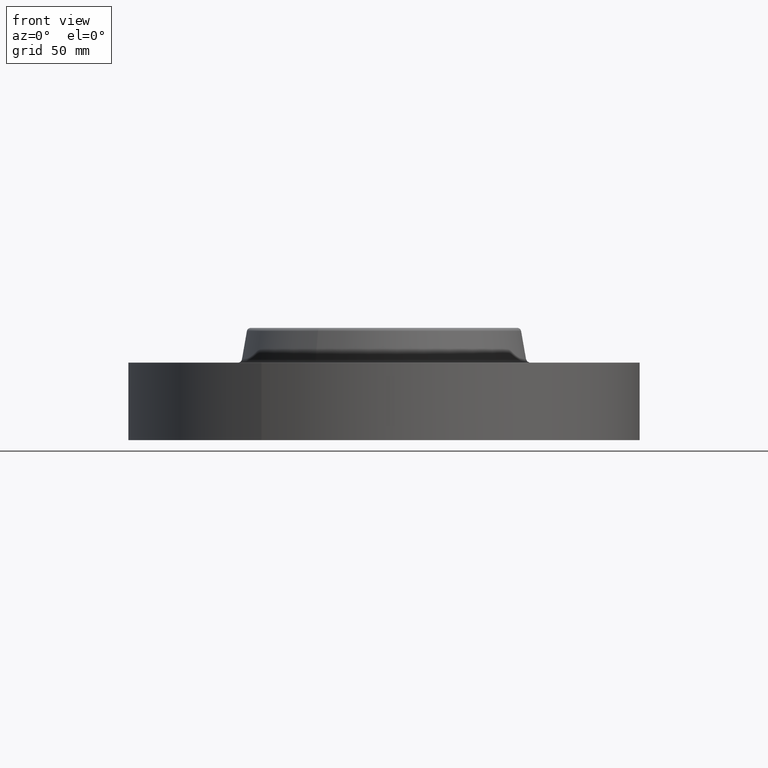
[diagram: clean part render]
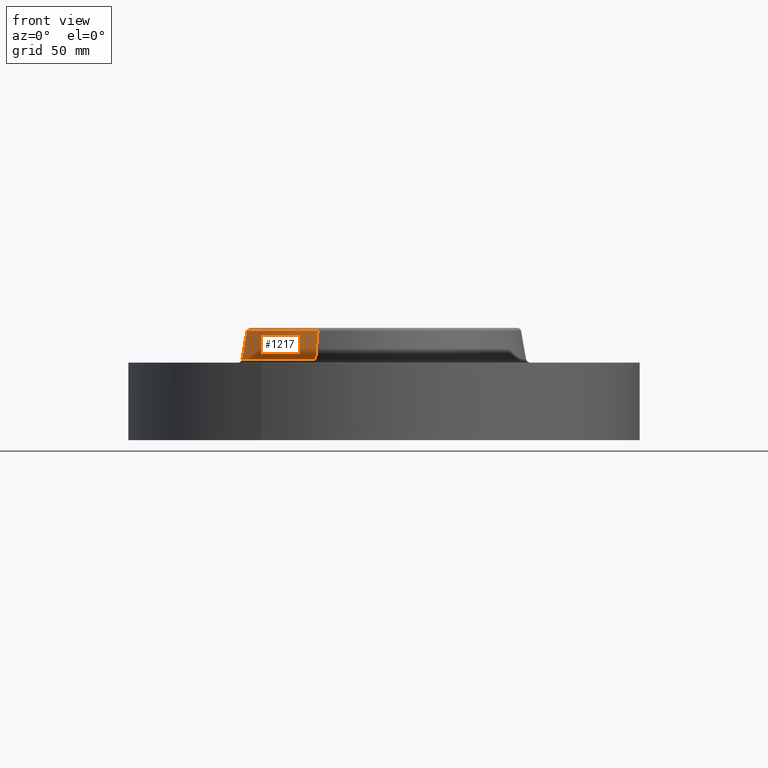
[diagram: same view with one face highlighted and labeled with its STEP entity id]
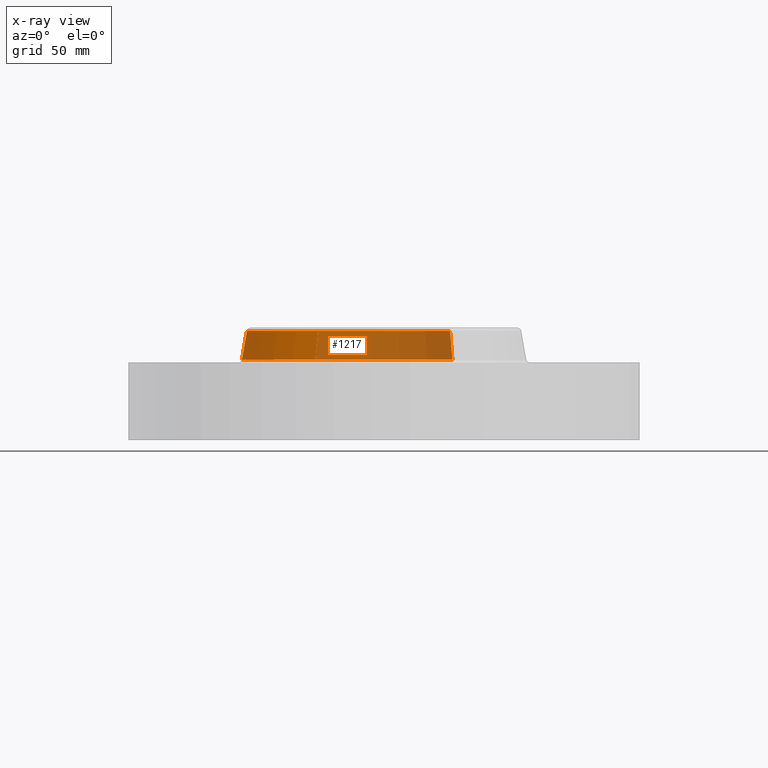
[diagram: x-ray of the same camera — body ghosted, the highlighted face saturated]
A machine part, front view. The second image highlights one B-rep face of the part: STEP entity #1217.
The next image is the same camera in x-ray: the body ghosted, the highlighted face saturated — about 65% of this face is hidden behind the body in this view.
In plain terms, the highlighted conical surface has half-angle 10 deg.
Its self-contained STEP definition (entity closure, byte-faithful):
#492=AXIS2_PLACEMENT_3D('Circle Axis2P3D',#490,#491,$) ;
#1204=AXIS2_PLACEMENT_3D('Cone Axis2P3D',#1201,#1202,#1203) ;
#1208=AXIS2_PLACEMENT_3D('Circle Axis2P3D',#1206,#1207,$) ;
#456=CARTESIAN_POINT('Vertex',(1.06432439756,1.94823274165,1.76041889067)) ;
#458=CARTESIAN_POINT('Vertex',(-1.06432439756,-1.94823274165,1.76041889067)) ;
#490=CARTESIAN_POINT('Axis2P3D Location',(0.,0.,1.76041889067)) ;
#1172=CARTESIAN_POINT('Vertex',(1.10328162249,2.01954346356,1.29958110935)) ;
#1174=CARTESIAN_POINT('Vertex',(-1.10328162249,-2.01954346356,1.29958110935)) ;
#1177=CARTESIAN_POINT('Line Origine',(1.08380301002,1.9838881026,1.53000000001)) ;
#1182=CARTESIAN_POINT('Line Origine',(-1.08380301002,-1.9838881026,1.53000000001)) ;
#1201=CARTESIAN_POINT('Axis2P3D Location',(0.,0.,1.76041889067)) ;
#1206=CARTESIAN_POINT('Axis2P3D Location',(0.,0.,1.29958110935)) ;
#491=DIRECTION('Axis2P3D Direction',(-0.,0.,-0.0393700787402)) ;
#1178=DIRECTION('Vector Direction',(0.00327761303565,0.00599963041827,-0.03877195878)) ;
#1183=DIRECTION('Vector Direction',(-0.00327761303565,-0.00599963041827,-0.03877195878)) ;
#1202=DIRECTION('Axis2P3D Direction',(0.,0.,-0.0393700787402)) ;
#1203=DIRECTION('Axis2P3D XDirection',(-0.0188750212049,-0.0345504945626,0.)) ;
#1207=DIRECTION('Axis2P3D Direction',(-0.,0.,-0.0393700787402)) ;
#1179=VECTOR('Line Direction',#1178,0.0393700787402) ;
#1184=VECTOR('Line Direction',#1183,0.0393700787402) ;
#1212=ORIENTED_EDGE('',*,*,#1210,.F.) ;
#1213=ORIENTED_EDGE('',*,*,#1186,.T.) ;
#1214=ORIENTED_EDGE('',*,*,#494,.T.) ;
#1215=ORIENTED_EDGE('',*,*,#1181,.F.) ;
#1217=ADVANCED_FACE('PartBody',(#1216),#1205,.T.) ;
#493=CIRCLE('generated circle',#492,2.21999937812) ;
#1209=CIRCLE('generated circle',#1208,2.3012575127) ;
#1205=CONICAL_SURFACE('Cone',#1204,2.21999937812,0.174532925199) ;
#494=EDGE_CURVE('',#459,#457,#493,.T.) ;
#1181=EDGE_CURVE('',#1173,#457,#1180,.F.) ;
#1186=EDGE_CURVE('',#1175,#459,#1185,.F.) ;
#1210=EDGE_CURVE('',#1175,#1173,#1209,.T.) ;
#1211=EDGE_LOOP('',(#1212,#1213,#1214,#1215)) ;
#1216=FACE_OUTER_BOUND('',#1211,.T.) ;
#1180=LINE('Line',#1177,#1179) ;
#1185=LINE('Line',#1182,#1184) ;
#457=VERTEX_POINT('',#456) ;
#459=VERTEX_POINT('',#458) ;
#1173=VERTEX_POINT('',#1172) ;
#1175=VERTEX_POINT('',#1174) ;